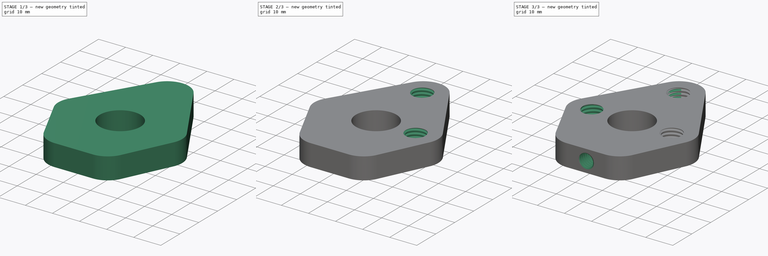
[diagram: build sequence overview — one tinted view per stage of 3, left to right]
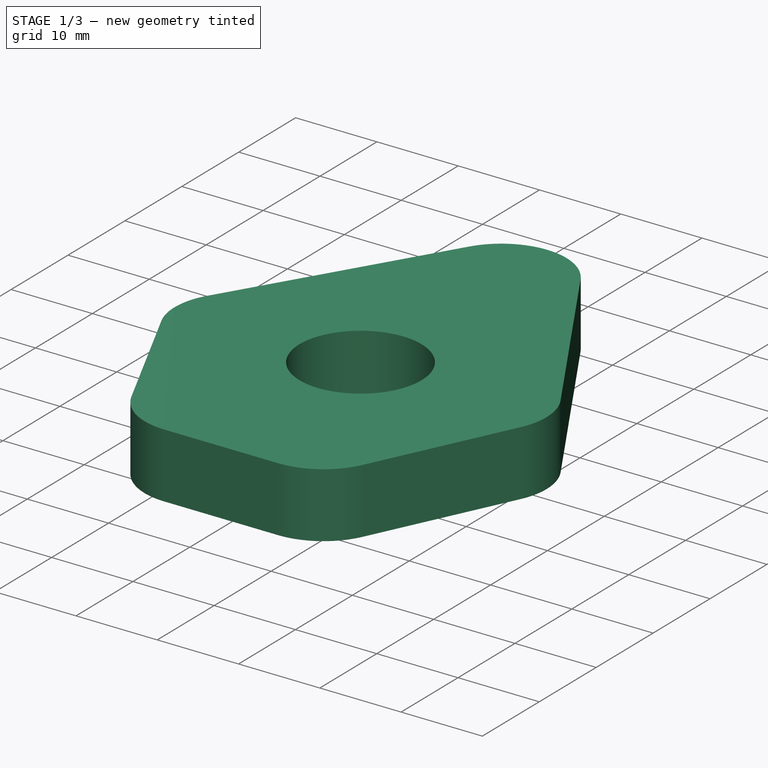
[diagram: stage 1 of 3 — iso view after this stage's code; geometry added in this stage tinted green]
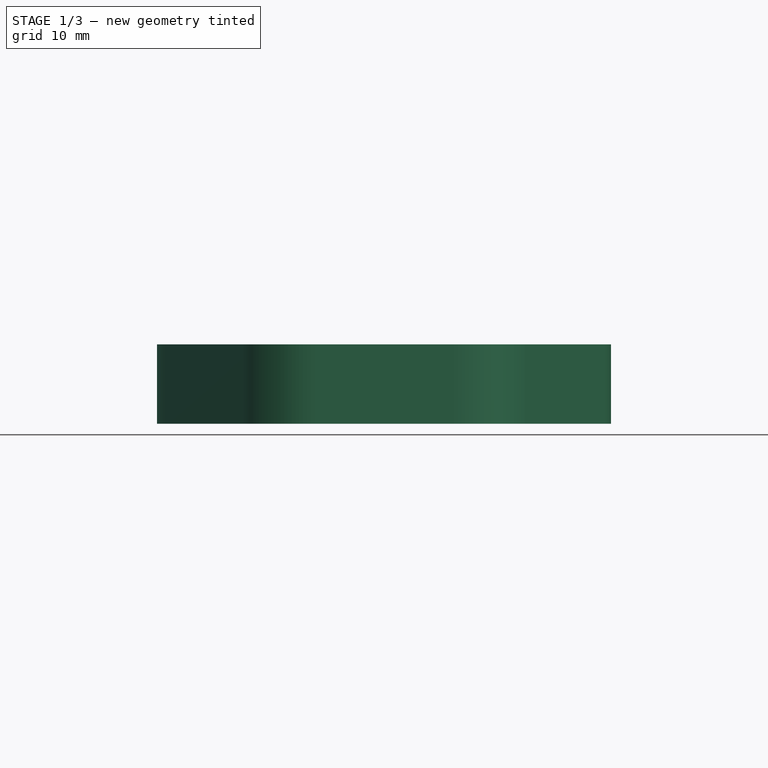
[diagram: stage 1 of 3 — front view after this stage's code; geometry added in this stage tinted green]
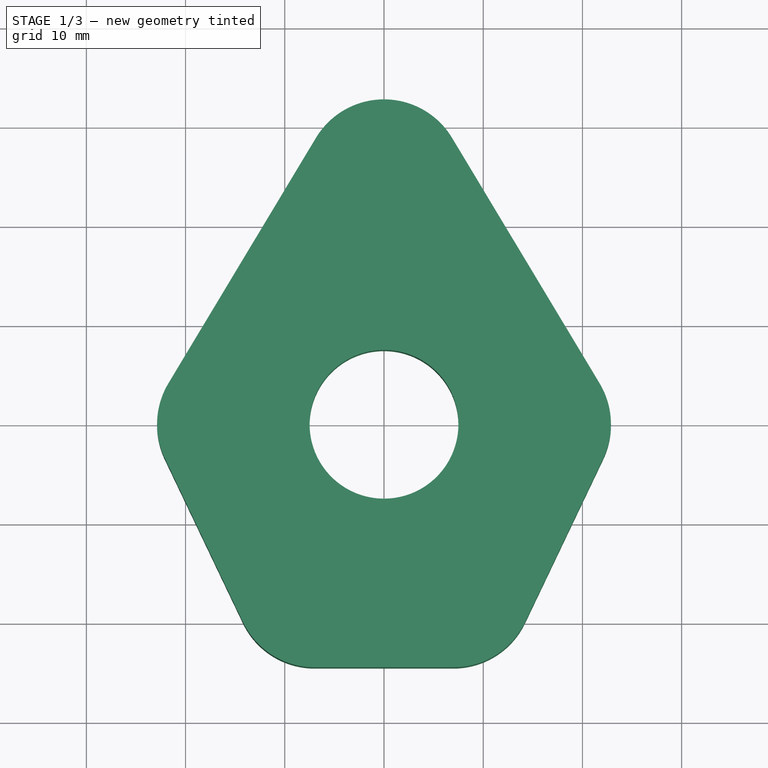
[diagram: stage 1 of 3 — top view after this stage's code; geometry added in this stage tinted green]
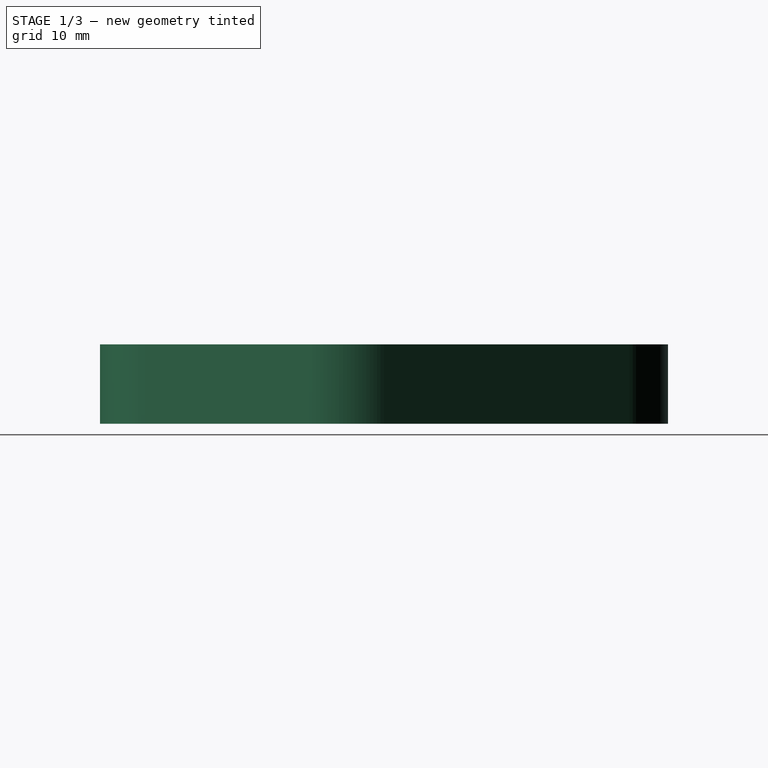
[diagram: stage 1 of 3 — right view after this stage's code; geometry added in this stage tinted green]
FCSTD DOCUMENT  (FreeCAD 0.20R29177 (Git))
Label: Поворот сортировщика семян2
License: All rights reserved
LicenseURL: http://en.wikipedia.org/wiki/All_rights_reserved
objects: Sketcher::SketchObject×3, PartDesign::Mirrored×2, PartDesign::Hole×2, PartDesign::Pad×1, PartDesign::Body×1
note: 12 computed .brp shape members not serialized (recipe doc carries the construction recipe); baked Part::Feature solids carry a one-line shape summary decoded from their .brp

FEATURE [Sketcher::SketchObject] Sketch
  FullyConstrained = true
  MapMode = 5
  Support = -> [XY_Plane]
  sketch-geometry (13):
    g0: ArcOfCircle CenterX=0 CenterY=0 CenterZ=0 NormalX=0 NormalY=0 NormalZ=1 AngleXU=0 Radius=7.5 StartAngle=4.71239 EndAngle=7.85398
    g1: ArcOfCircle CenterX=0 CenterY=24.75 CenterZ=0 NormalX=0 NormalY=0 NormalZ=1 AngleXU=0 Radius=4 StartAngle=4.71239 EndAngle=7.85398
    g2: ArcOfCircle CenterX=0 CenterY=24.75 CenterZ=0 NormalX=0 NormalY=0 NormalZ=1 AngleXU=0 Radius=8 StartAngle=0.541162 EndAngle=1.5708
    g3: ArcOfCircle CenterX=14.875 CenterY=0 CenterZ=0 NormalX=0 NormalY=0 NormalZ=1 AngleXU=0 Radius=8 StartAngle=5.83788 EndAngle=6.82435
    g4: LineSegment StartX=6.85689 StartY=28.8711 StartZ=0 EndX=21.7319 EndY=4.12106 EndZ=0
    g5: LineSegment StartX=22.0948 StartY=-3.44584 StartZ=0 EndX=14.2198 EndY=-19.9458 EndZ=0
    g6: LineSegment StartX=0 StartY=-24.5 StartZ=0 EndX=7 EndY=-24.5 EndZ=0
    g7: LineSegment StartX=0 StartY=-24.5 StartZ=0 EndX=-1.4e-15 EndY=-7.5 EndZ=0
    g8: LineSegment StartX=2.3e-15 StartY=7.5 StartZ=0 EndX=0 EndY=20.75 EndZ=0
    g9: LineSegment StartX=0 StartY=28.75 StartZ=0 EndX=0 EndY=32.75 EndZ=0
    g10: ArcOfCircle CenterX=7 CenterY=-16.5 CenterZ=0 NormalX=0 NormalY=0 NormalZ=1 AngleXU=0 Radius=8 StartAngle=4.71239 EndAngle=5.83788
    g11: Circle CenterX=14.875 CenterY=0 CenterZ=0 NormalX=0 NormalY=0 NormalZ=1 AngleXU=0 Radius=4
    g12: LineSegment StartX=0 StartY=28.75 StartZ=0 EndX=0 EndY=20.75 EndZ=0
  constraints (35):
    c: Coincident(g0,g-1)
    c: PointOnObject(g0,g-2)
    c: PointOnObject(g0,g-2)
    c: PointOnObject(g1,g-2)
    c: PointOnObject(g1,g-2)
    c: PointOnObject(g1,g-2)
    c: Coincident(g2,g1)
    c: PointOnObject(g2,g-2)
    c: PointOnObject(g3,g-1)
    c: PointOnObject(g6,g-2)
    c: Horizontal(g6)
    c: Coincident(g7,g6)
    c: Coincident(g7,g0)
    c: Coincident(g8,g0)
    c: Coincident(g8,g1)
    c: Coincident(g9,g1)
    c: Coincident(g9,g2)
    c: Coincident(g11,g3)
    c: Tangent(g4,g2) = 1.5708
    c: Tangent(g4,g3) = 1.5708
    c: Tangent(g5,g3) = 1.5708
    c: Tangent(g10,g5) = 1.5708
    c: Tangent(g10,g6) = -1.5708
    c: Diameter(g0) = 15
    c: DistanceY(g1) = 24.75
    c: DistanceX(g3) = 14.875
    c: Diameter(g1) = 8
    c: Equal(g10,g3)
    c: Equal(g3,g2)
    c: Diameter(g3) = 16
    c: Equal(g11,g1)
    c: Distance(g7) = 17
    c: Distance(g6) = 7
    c: Coincident(g12,g9)
    c: Coincident(g12,g8)
FEATURE [PartDesign::Pad] Pad
  Direction = (0,0,1)
  Length = 8
  Length2 = 10
  Midplane = true
  Profile = -> Sketch
  ReferenceAxis = -> Sketch [N_Axis]
  Type = 0
FEATURE [Sketcher::SketchObject] Sketch001
  AttachmentOffset = pos=(0,0,5) rot=(0,0,1;0rad)
  FullyConstrained = false
  MapMode = 5
  Placement = pos=(0,0,5) rot=(0,0,1;0rad)
  Support = -> [XY_Plane]
  expr: .AttachmentOffset.Base.z = Pad.Length / 2 + 1mm
  expr: Constraints[22] = Sketch.Constraints[23]
  expr: Constraints[23] = Sketch.Constraints[24]
  expr: Constraints[24] = Sketch.Constraints[25]
  expr: Constraints[25] = Sketch.Constraints[26]
  expr: Constraints[28] = Sketch.Constraints[29]
  expr: Constraints[30] = Sketch.Constraints[31]
  expr: Constraints[31] = Sketch.Constraints[32]
  sketch-geometry (14):
    g0: ArcOfCircle CenterX=0 CenterY=0 CenterZ=0 NormalX=0 NormalY=0 NormalZ=1 AngleXU=0 Radius=7.5 StartAngle=4.71239 EndAngle=7.85398
    g1: ArcOfCircle CenterX=0 CenterY=24.75 CenterZ=0 NormalX=0 NormalY=0 NormalZ=1 AngleXU=0 Radius=4 StartAngle=4.71235 EndAngle=7.85398
    g2: ArcOfCircle CenterX=0 CenterY=24.75 CenterZ=0 NormalX=0 NormalY=0 NormalZ=1 AngleXU=0 Radius=8 StartAngle=0.541162 EndAngle=1.5708
    g3: ArcOfCircle CenterX=14.875 CenterY=0 CenterZ=0 NormalX=0 NormalY=0 NormalZ=1 AngleXU=0 Radius=8 StartAngle=5.83788 EndAngle=6.82435
    g4: LineSegment StartX=6.85689 StartY=28.8711 StartZ=0 EndX=21.7319 EndY=4.12106 EndZ=0
    g5: LineSegment StartX=22.0948 StartY=-3.44584 StartZ=0 EndX=14.2198 EndY=-19.9458 EndZ=0
    g6: LineSegment StartX=0 StartY=-24.5 StartZ=0 EndX=7 EndY=-24.5 EndZ=0
    g7: LineSegment StartX=0 StartY=-24.5 StartZ=0 EndX=-1.4e-15 EndY=-7.5 EndZ=0
    g8: LineSegment StartX=2.3e-15 StartY=7.5 StartZ=0 EndX=-0.000158182 EndY=20.75 EndZ=0
    g9: LineSegment StartX=1.2e-15 StartY=28.75 StartZ=0 EndX=5e-16 EndY=32.75 EndZ=0
    g10: ArcOfCircle CenterX=7 CenterY=-16.5 CenterZ=0 NormalX=0 NormalY=0 NormalZ=1 AngleXU=0 Radius=8 StartAngle=4.71239 EndAngle=5.83788
    g11: Circle CenterX=14.875 CenterY=0 CenterZ=0 NormalX=0 NormalY=0 NormalZ=1 AngleXU=0 Radius=4
    g12: LineSegment StartX=1.2e-15 StartY=28.75 StartZ=0 EndX=-0.000158182 EndY=20.75 EndZ=0
    g13: Circle CenterX=0 CenterY=24.75 CenterZ=0 NormalX=0 NormalY=0 NormalZ=1 AngleXU=0 Radius=4
  constraints (36):
    c: Coincident(g0,g-1)
    c: PointOnObject(g0,g-2)
    c: PointOnObject(g0,g-2)
    c: PointOnObject(g1,g-2)
    c: PointOnObject(g1,g-2)
    c: Coincident(g2,g1)
    c: PointOnObject(g2,g-2)
    c: PointOnObject(g3,g-1)
    c: PointOnObject(g6,g-2)
    c: Horizontal(g6)
    c: Coincident(g7,g6)
    c: Coincident(g7,g0)
    c: Coincident(g8,g0)
    c: Coincident(g8,g1)
    c: Coincident(g9,g1)
    c: Coincident(g9,g2)
    c: Coincident(g11,g3)
    c: Tangent(g4,g2) = 1.5708
    c: Tangent(g4,g3) = 1.5708
    c: Tangent(g5,g3) = 1.5708
    c: Tangent(g10,g5) = 1.5708
    c: Tangent(g10,g6) = -1.5708
    c: Diameter(g0) = 15
    c: DistanceY(g1) = 24.75
    c: DistanceX(g3) = 14.875
    c: Diameter(g1) = 8
    c: Equal(g10,g3)
    c: Equal(g3,g2)
    c: Diameter(g3) = 16
    c: Equal(g11,g1)
    c: Distance(g7) = 17
    c: Distance(g6) = 7
    c: Coincident(g12,g9)
    c: Coincident(g12,g8)
    c: Coincident(g13,g1)
    c: PointOnObject(g1,g13)
FEATURE [PartDesign::Mirrored] Mirrored
  BaseFeature = -> Pad
  MirrorPlane = -> Sketch [V_Axis]
  Originals = -> [Pad]
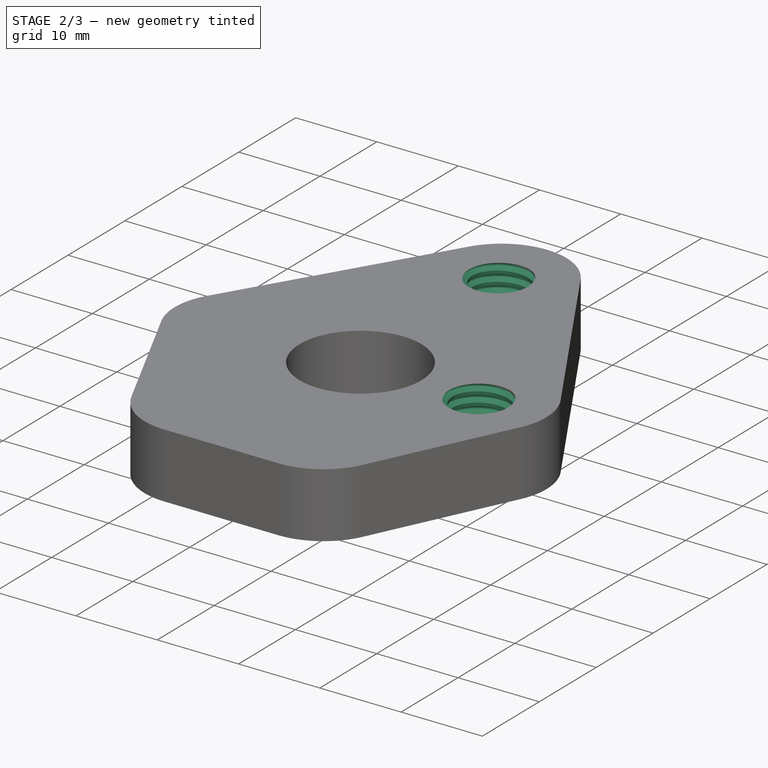
[diagram: stage 2 of 3 — iso view after this stage's code; geometry added in this stage tinted green]
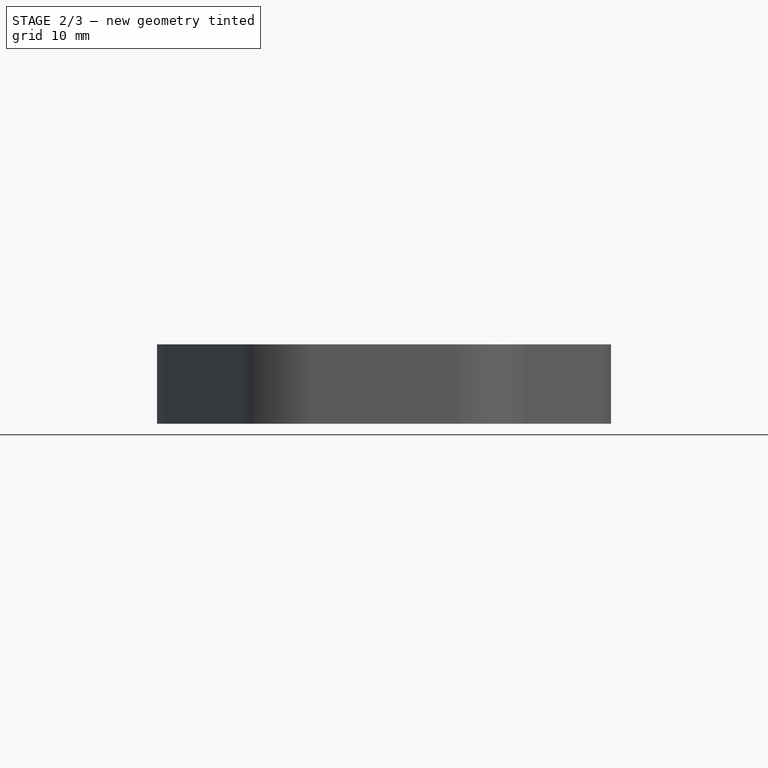
[diagram: stage 2 of 3 — front view after this stage's code; geometry added in this stage tinted green]
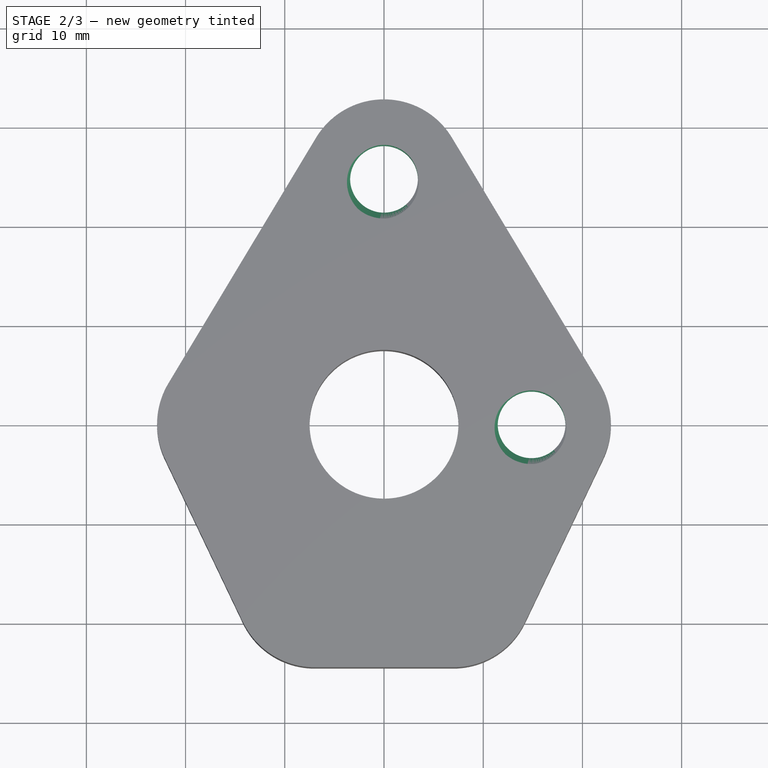
[diagram: stage 2 of 3 — top view after this stage's code; geometry added in this stage tinted green]
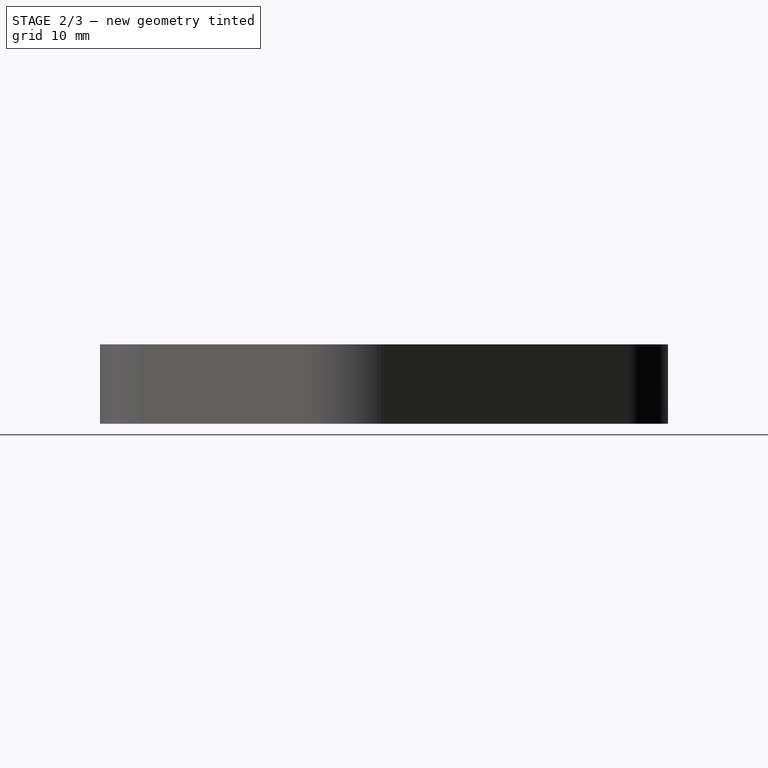
[diagram: stage 2 of 3 — right view after this stage's code; geometry added in this stage tinted green]
FEATURE [PartDesign::Hole] Hole
  BaseFeature = -> Mirrored
  CustomThreadClearance = 0
  Depth = 148.891
  DepthType = 1
  Diameter = 6.828
  DrillForDepth = false
  DrillPoint = 1
  DrillPointAngle = 118
  HoleCutCountersinkAngle = 90
  HoleCutCustomValues = false
  HoleCutDepth = 0
  HoleCutDiameter = 6.1
  HoleCutType = 0
  ModelThread = true
  Profile = -> Sketch001
  Tapered = true
  TaperedAngle = 90
  ThreadClass = 0
  ThreadDepth = 148.891
  ThreadDepthType = 0
  ThreadDirection = 0
  ThreadFit = 0
  ThreadSize = 16
  ThreadType = 1
  Threaded = true
  UseCustomThreadClearance = false
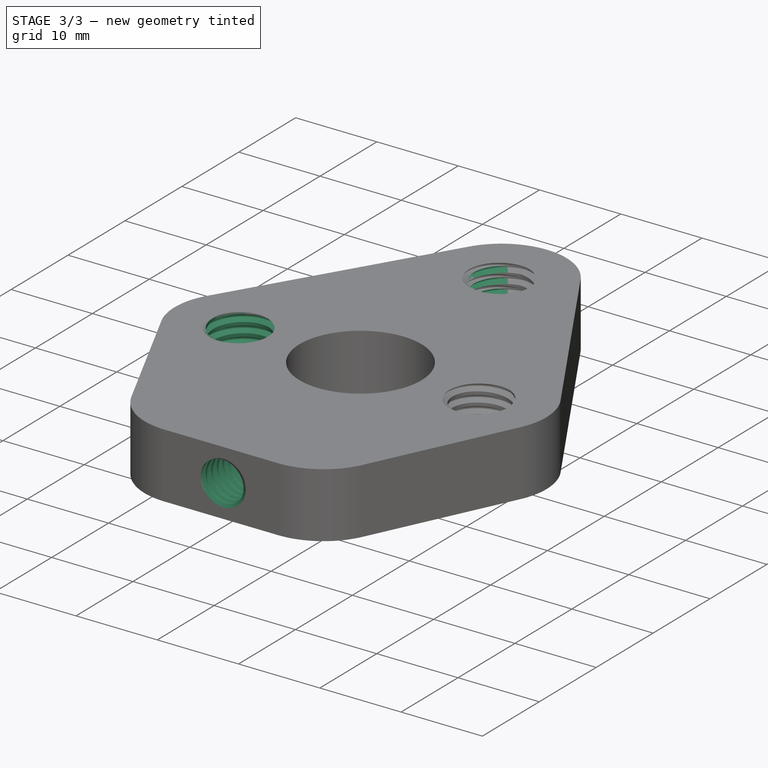
[diagram: stage 3 of 3 — iso view after this stage's code; geometry added in this stage tinted green]
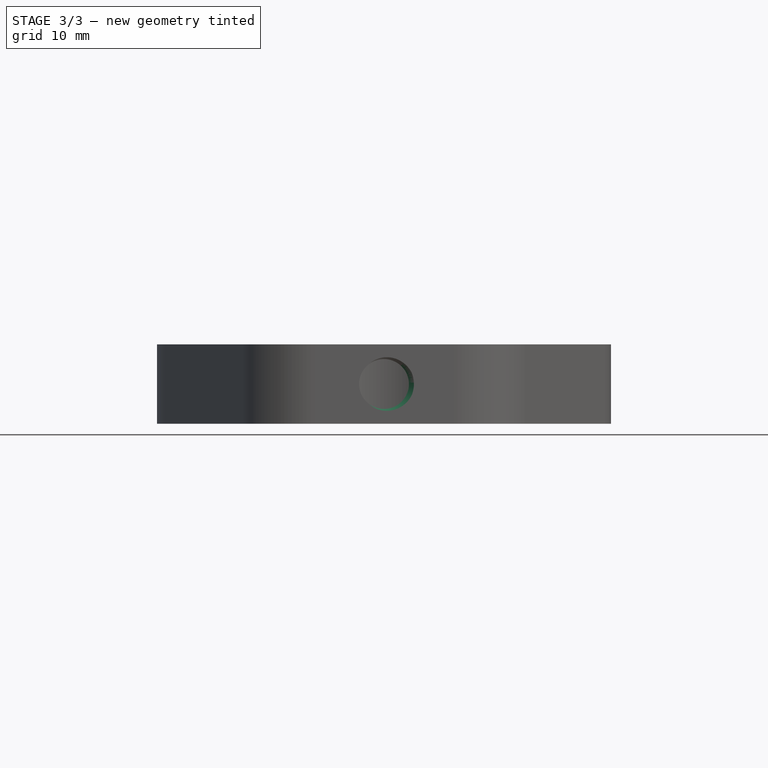
[diagram: stage 3 of 3 — front view after this stage's code; geometry added in this stage tinted green]
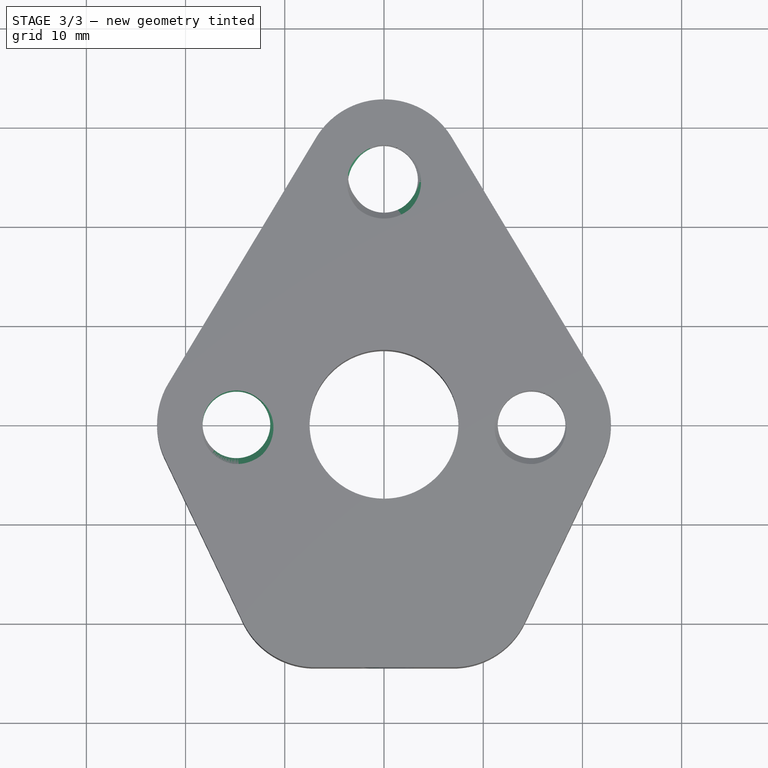
[diagram: stage 3 of 3 — top view after this stage's code; geometry added in this stage tinted green]
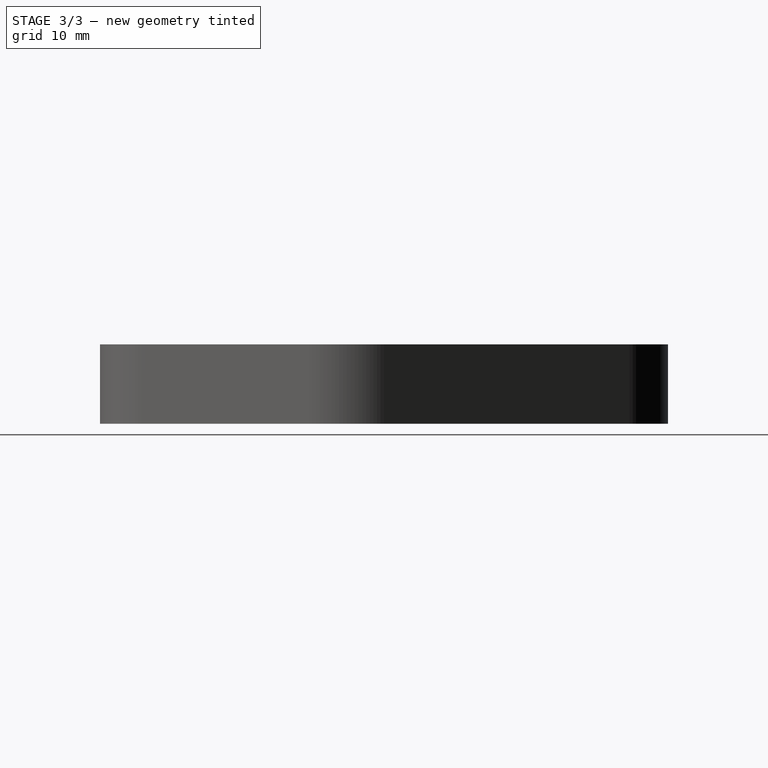
[diagram: stage 3 of 3 — right view after this stage's code; geometry added in this stage tinted green]
FEATURE [Sketcher::SketchObject] Sketch002
  FullyConstrained = false
  MapMode = 5
  Placement = pos=(0,0,0) rot=(1,0,0;1.5708rad)
  Support = -> [XZ_Plane]
  sketch-geometry (1):
    g0: Circle CenterX=0 CenterY=0 CenterZ=0 NormalX=0 NormalY=0 NormalZ=1 AngleXU=0 Radius=1.4889
  constraints (1):
    c: Coincident(g0,g-1)
FEATURE [PartDesign::Hole] Hole001
  BaseFeature = -> Hole
  CustomThreadClearance = 0
  Depth = 148.891
  DepthType = 1
  Diameter = 5.026
  DrillForDepth = false
  DrillPoint = 1
  DrillPointAngle = 118
  HoleCutCountersinkAngle = 90
  HoleCutCustomValues = false
  HoleCutDepth = 0
  HoleCutDiameter = 6.1
  HoleCutType = 0
  ModelThread = true
  Profile = -> Sketch002
  Reversed = true
  Tapered = false
  TaperedAngle = 90
  ThreadClass = 0
  ThreadDepth = 148.891
  ThreadDepthType = 0
  ThreadDirection = 0
  ThreadFit = 0
  ThreadSize = 14
  ThreadType = 1
  Threaded = true
  UseCustomThreadClearance = false
FEATURE [PartDesign::Mirrored] Mirrored001
  BaseFeature = -> Hole001
  MirrorPlane = -> Sketch001 [V_Axis]
  Originals = -> [Hole]
FEATURE [PartDesign::Body] Body
  Group = -> [Sketch,Pad,Sketch001,Mirrored,Hole,Sketch002,Hole001,Mirrored001]
  Origin = -> Origin
  Tip = -> Mirrored001
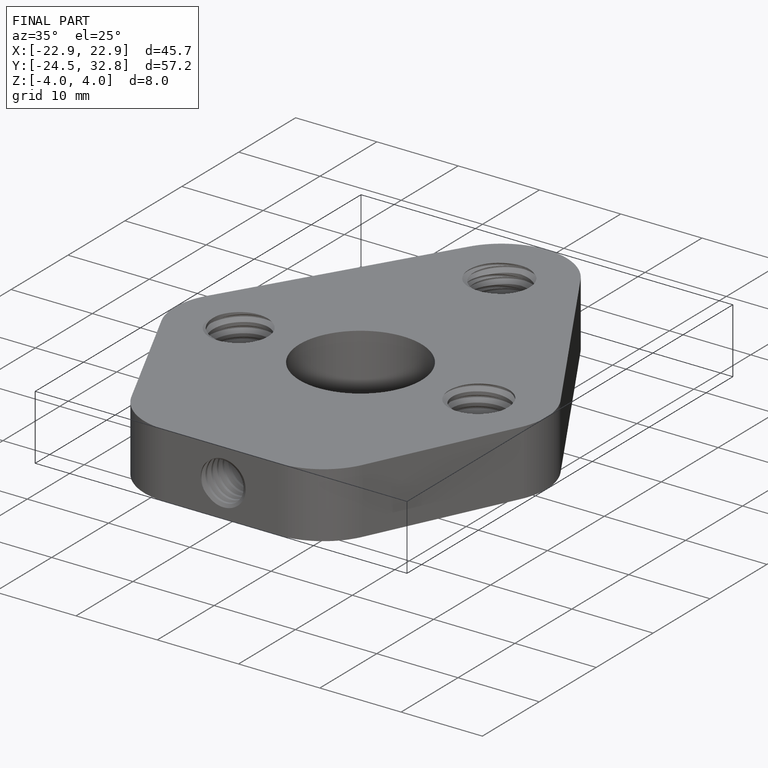
[diagram: finished part — iso view with bounding-box wireframe]
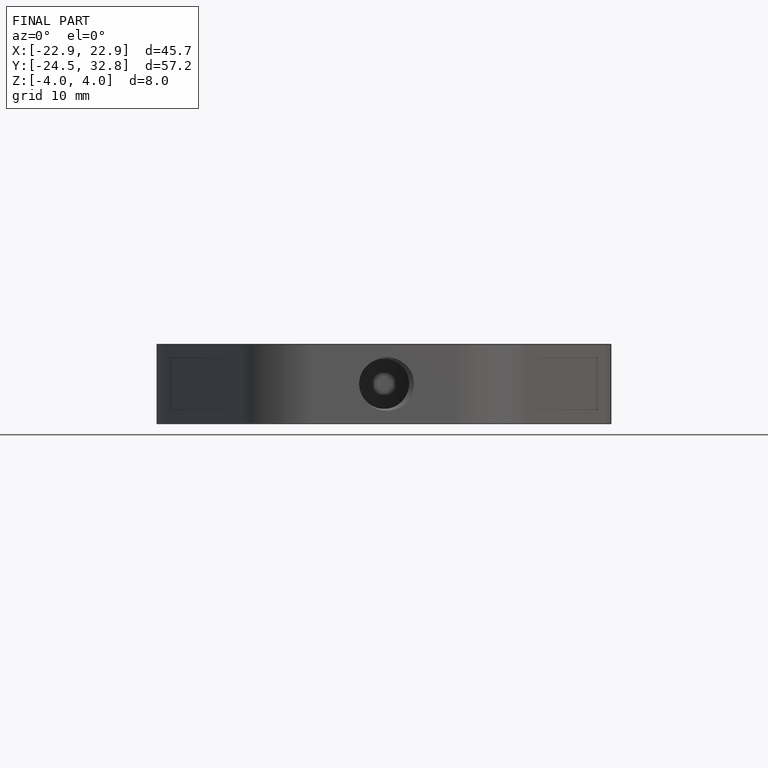
[diagram: finished part — front view with bounding-box wireframe]
